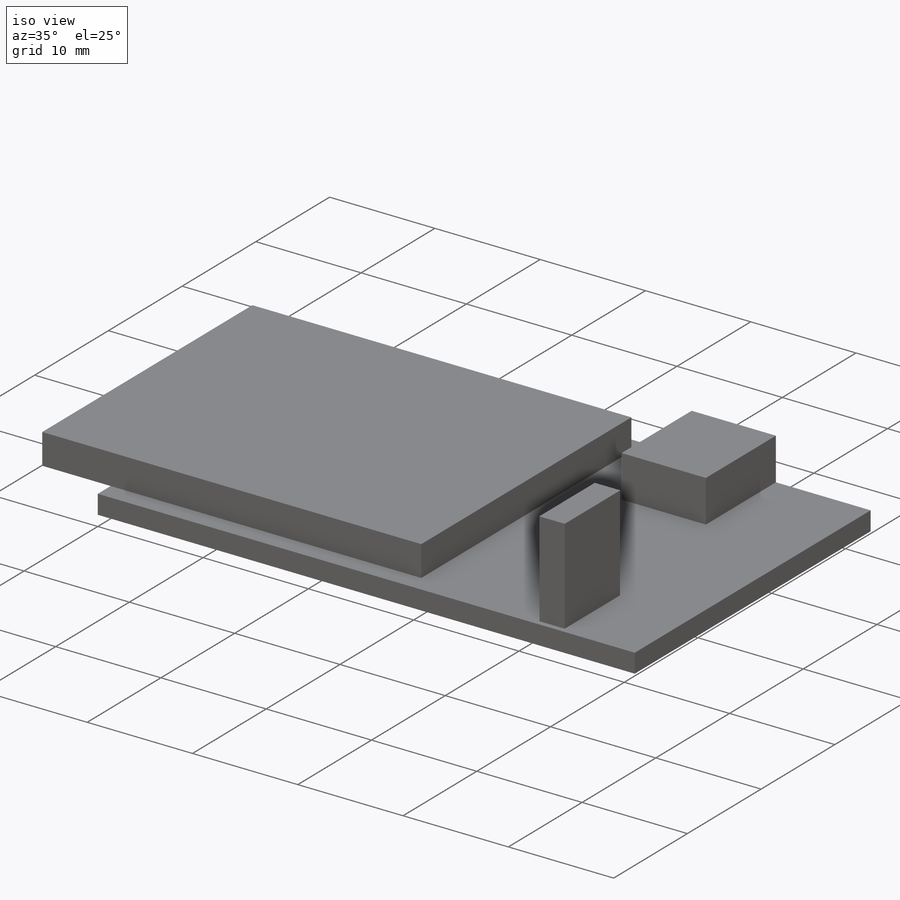
[diagram: iso view]
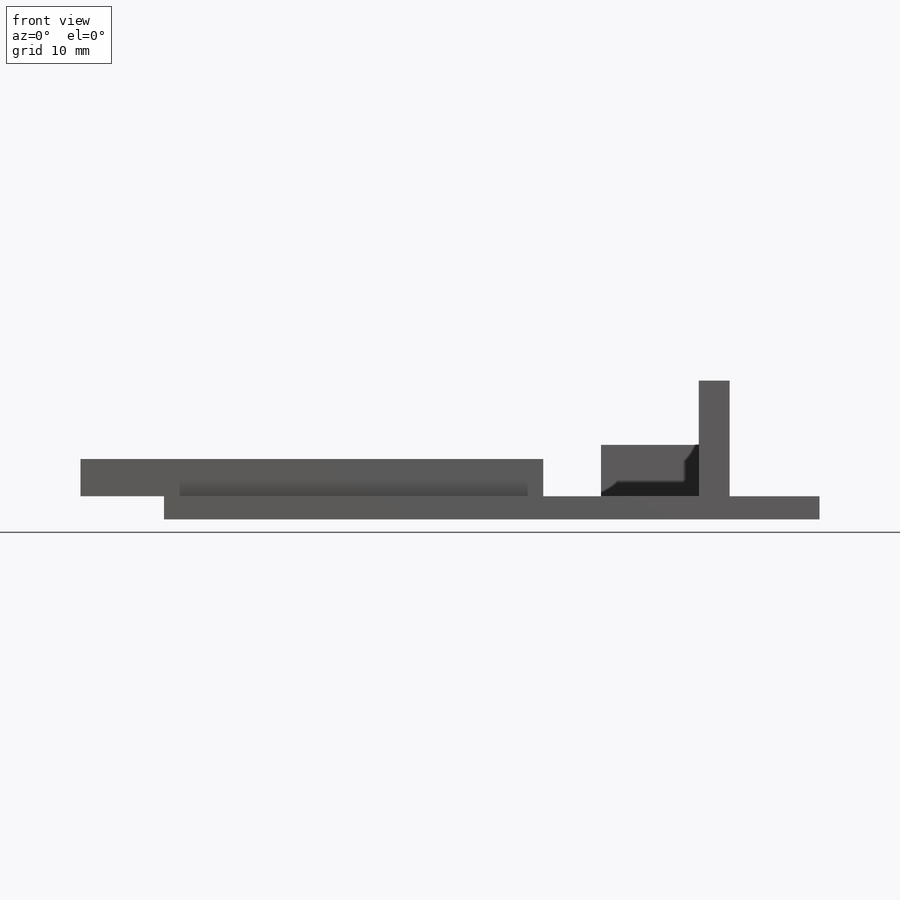
[diagram: front view]
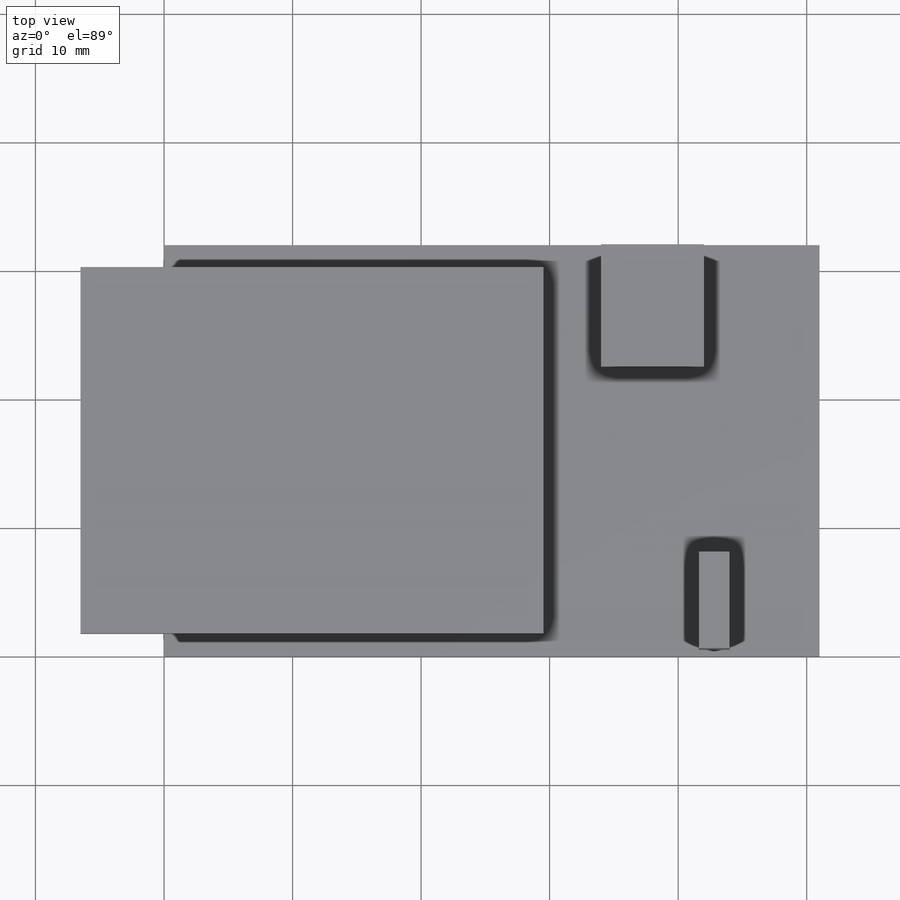
[diagram: top view]
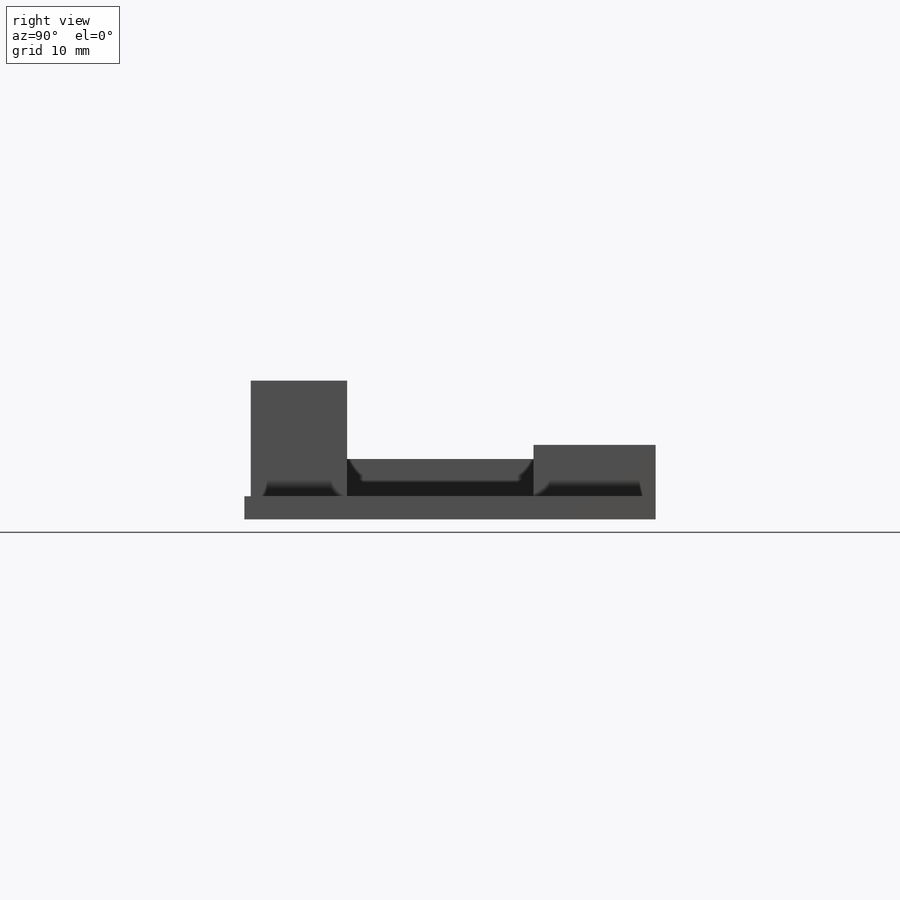
[diagram: right view]
SOLIDWORKS PART (.sldprt)
format: sldprt  version: not decoded by parser v0  size: 186,368 bytes
history: native  units: mm
features: sketch x4, extrude x4, material x1, plane x1 (+16 scaffold rows collapsed)
feature tree (26):
  scaffold x16  (default folders/planes/origin — collapsed)
  material  "Material <not specified>"
  sketch  "Sketch1"  dims[D1=51.0mm D2=32.0mm]
  extrude  "Boss-Extrude1"  Depth=1.8mm
  sketch  "Sketch2"  dims[D1=28.5mm D2=36.0mm D3=6.5mm]
  extrude  "Boss-Extrude2"  Depth=2.9mm
  sketch  "Sketch3"  dims[D1=2.4mm D2=7.5mm D3=7.0mm D4=0.5mm]
  extrude  "Boss-Extrude3"  Depth=9mm
  sketch  "Sketch4"  dims[D1=8.0mm D2=9.5mm D3=9.0mm]
  extrude  "Boss-Extrude4"  Depth=4mm
  plane  "Midplane"
decode coverage: 8 of 8 modeling features carry decoded parameters
note: suppression state not decoded; provenance and decode notes live in map.json
